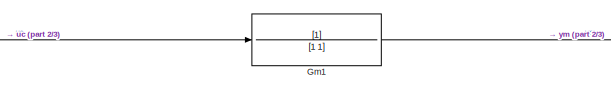
[diagram: root canvas - part 1/3, top center region]
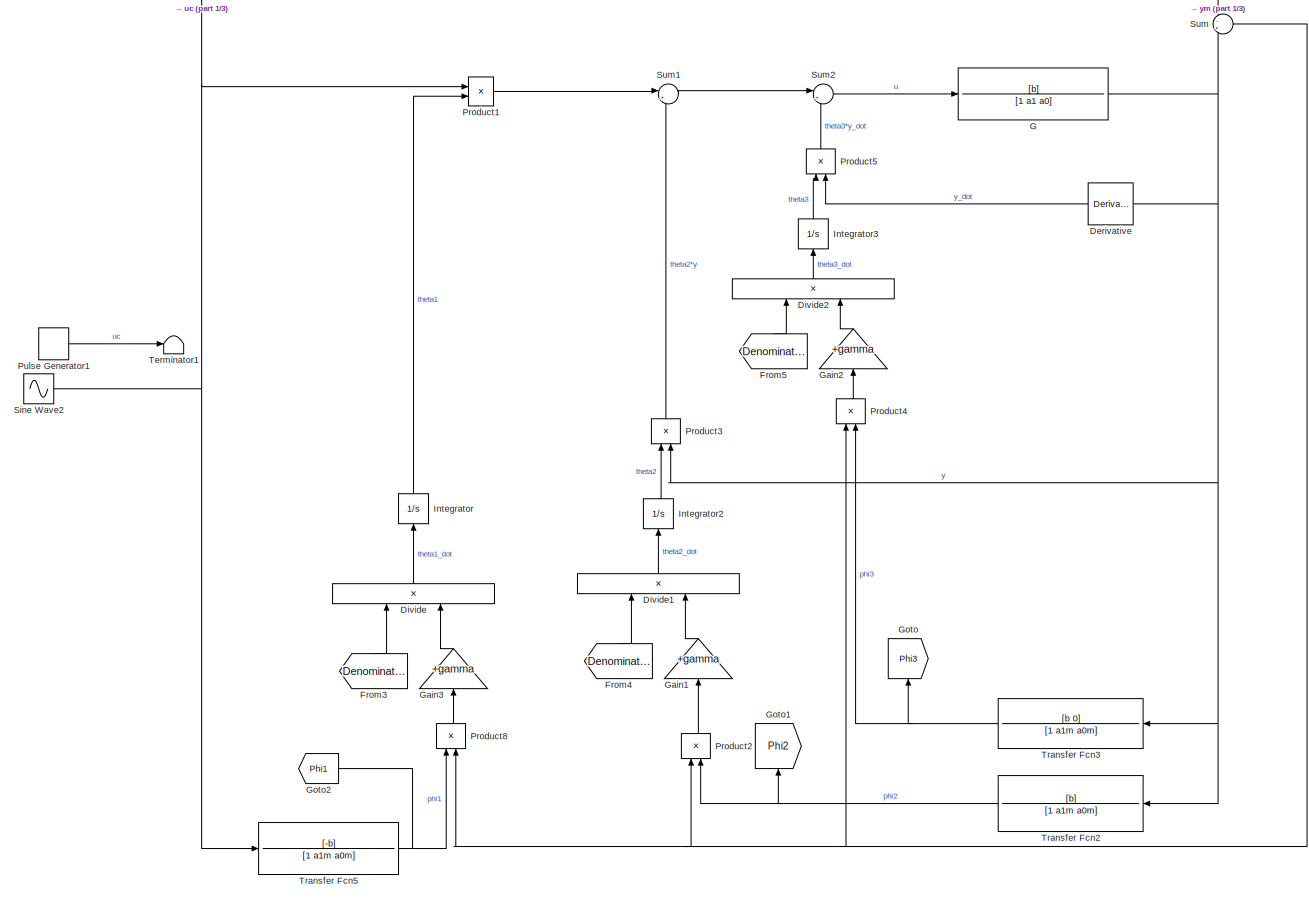
[diagram: root canvas - part 2/3, most of the canvas]
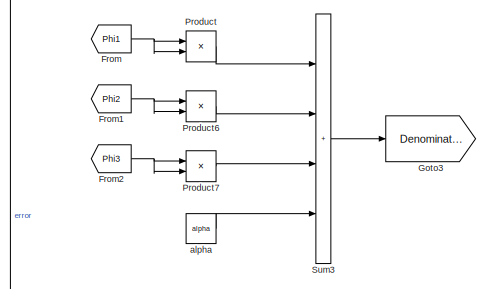
[diagram: root canvas - part 3/3, middle right region]
MODEL slx_a6d0b2788651
KIND model
CONFIG AbsTol = auto
CONFIG EnableMultiTasking = off
CONFIG FixedStep = auto
CONFIG MaxStep = auto
CONFIG MinStep = auto
CONFIG RelTol = 1e-3
CONFIG SampleTimeConstraint = Unconstrained
CONFIG SolverName = VariableStepAuto
CONFIG StartTime = 0.0
CONFIG StopTime = 400
BLOCK [Derivative] Derivative
  NameLocation = top
BLOCK [Product] Divide
  Inputs = /*
  NameLocation = right
  Ports = [2, 1]
BLOCK [Product] Divide1
  Inputs = /*
  NameLocation = right
  Ports = [2, 1]
BLOCK [Product] Divide2
  Inputs = /*
  NameLocation = right
  Ports = [2, 1]
BLOCK [From] From
  GotoTag = Phi1
BLOCK [From] From1
  GotoTag = Phi2
BLOCK [From] From2
  GotoTag = Phi3
BLOCK [From] From3
  GotoTag = Denominator
  NameLocation = right
BLOCK [From] From4
  GotoTag = Denominator
  NameLocation = right
BLOCK [From] From5
  GotoTag = Denominator
  NameLocation = right
BLOCK [TransferFcn] G
  Denominator = [1 a1 a0]
  Numerator = [b]
BLOCK [Gain] Gain1
  Gain = +gamma
  NameLocation = right
BLOCK [Gain] Gain2
  Gain = +gamma
  NameLocation = right
BLOCK [Gain] Gain3
  Gain = +gamma
  NameLocation = right
BLOCK [TransferFcn] Gm1
BLOCK [Goto] Goto
  GotoTag = Phi3
  NameLocation = right
BLOCK [Goto] Goto1
  GotoTag = Phi2
  NameLocation = right
BLOCK [Goto] Goto2
  GotoTag = Phi1
  NameLocation = top
BLOCK [Goto] Goto3
  GotoTag = Denominator
BLOCK [Integrator] Integrator
  NameLocation = right
  Ports = [1, 1]
BLOCK [Integrator] Integrator2
  NameLocation = right
  Ports = [1, 1]
BLOCK [Integrator] Integrator3
  NameLocation = right
  Ports = [1, 1]
BLOCK [Product] Product
  Ports = [2, 1]
BLOCK [Product] Product1
  Ports = [2, 1]
BLOCK [Product] Product2
  NameLocation = right
  Ports = [2, 1]
BLOCK [Product] Product3
  NameLocation = right
  Ports = [2, 1]
BLOCK [Product] Product4
  NameLocation = right
  Ports = [2, 1]
BLOCK [Product] Product5
  NameLocation = right
  Ports = [2, 1]
BLOCK [Product] Product6
  Ports = [2, 1]
BLOCK [Product] Product7
  Ports = [2, 1]
BLOCK [Product] Product8
  NameLocation = right
  Ports = [2, 1]
BLOCK [DiscretePulseGenerator] Pulse Generator1
  Period = 100
  Ports = [0, 1]
  PulseType = Time based
  PulseWidth = 50
BLOCK [Sin] Sine Wave2
  Amplitude = 10
  Frequency = 0.1
  Ports = [0, 1]
  SampleTime = 0
BLOCK [Sum] Sum
  Inputs = -+
  Ports = [2, 1]
BLOCK [Sum] Sum1
  Inputs = |+-
  Ports = [2, 1]
BLOCK [Sum] Sum2
  Inputs = |+-
  Ports = [2, 1]
BLOCK [Sum] Sum3
  IconShape = rectangular
  Inputs = ++++
  Ports = [4, 1]
BLOCK [Terminator] Terminator1
BLOCK [TransferFcn] Transfer Fcn2
  Denominator = [1 a1m a0m]
  NameLocation = top
  Numerator = [b]
BLOCK [TransferFcn] Transfer Fcn3
  Denominator = [1 a1m a0m]
  NameLocation = top
  Numerator = [b 0]
BLOCK [TransferFcn] Transfer Fcn5
  Denominator = [1 a1m a0m]
  Numerator = [-b]
BLOCK [Constant] alpha
  Value = alpha
LINE Derivative:1 -> Product5:2
LINE Divide1:1 -> Integrator2:1
LINE Divide2:1 -> Integrator3:1
LINE Divide:1 -> Integrator:1
NET From1:1 -> Product6:1, Product6:2
NET From2:1 -> Product7:1, Product7:2
LINE From3:1 -> Divide:1
LINE From4:1 -> Divide1:1
LINE From5:1 -> Divide2:1
NET From:1 -> Product:1, Product:2
NET G:1 -> Derivative:1, Product3:2, Sum:2, Transfer Fcn2:1, Transfer Fcn3:1
LINE Gain1:1 -> Divide1:2
LINE Gain2:1 -> Divide2:2
LINE Gain3:1 -> Divide:2
LINE Gm1:1 -> Sum:1
LINE Integrator2:1 -> Product3:1
LINE Integrator3:1 -> Product5:1
LINE Integrator:1 -> Product1:2
LINE Product1:1 -> Sum1:1
LINE Product2:1 -> Gain1:1
LINE Product3:1 -> Sum1:2
LINE Product4:1 -> Gain2:1
LINE Product5:1 -> Sum2:2
LINE Product6:1 -> Sum3:2
LINE Product7:1 -> Sum3:3
LINE Product8:1 -> Gain3:1
LINE Product:1 -> Sum3:1
LINE Pulse Generator1:1 -> Terminator1:1
NET Sine Wave2:1 -> Gm1:1, Product1:1, Transfer Fcn5:1
LINE Sum1:1 -> Sum2:1
LINE Sum2:1 -> G:1
LINE Sum3:1 -> Goto3:1
NET Sum:1 -> Product2:1, Product4:1, Product8:2
NET Transfer Fcn2:1 -> Goto1:1, Product2:2
NET Transfer Fcn3:1 -> Goto:1, Product4:2
NET Transfer Fcn5:1 -> Goto2:1, Product8:1
LINE alpha:1 -> Sum3:4
note: NET lines group one-source signal fan-out (src -> all destinations, sorted); 1:1 wires keep LINE
